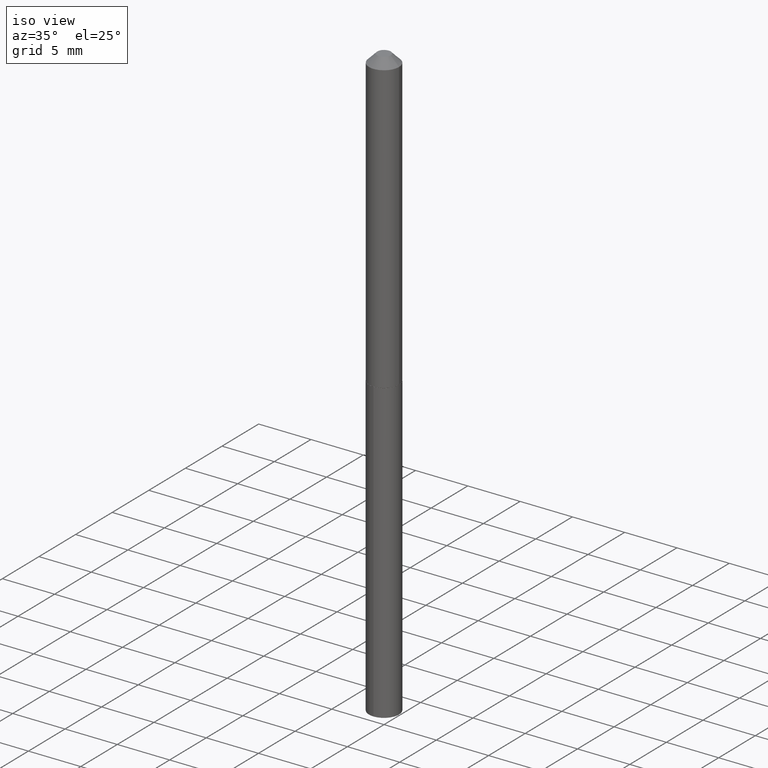
[diagram: clean part render]
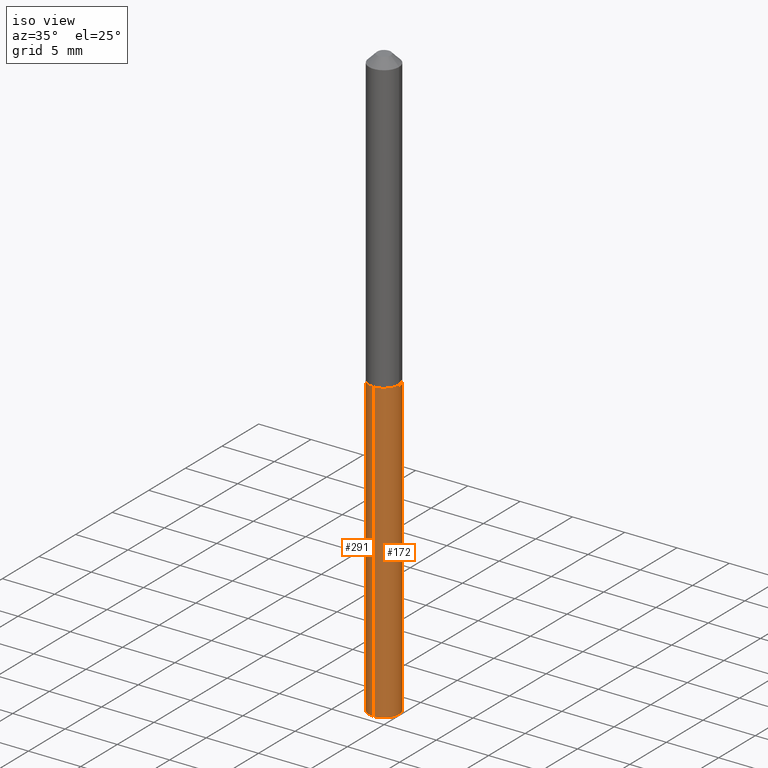
[diagram: same view with one multi-face feature highlighted, each face labeled with its STEP entity id]
A machine part, iso view. The highlighted faces form ONE feature: a constant-radius fillet chain: 2 tangent blend faces with common blend radius 1.4351 mm. The faces share edges in the B-rep.
Their STEP definitions:
[1] entity #172 (Cylinder):
#28 = CYLINDRICAL_SURFACE ( 'NONE', #364, 0.05650000000000000161 ) ;
#30 = FACE_OUTER_BOUND ( 'NONE', #249, .T. ) ;
#41 = EDGE_CURVE ( 'NONE', #94, #45, #75, .T. ) ;
#45 = VERTEX_POINT ( 'NONE', #105 ) ;
#62 = VERTEX_POINT ( 'NONE', #79 ) ;
#68 = VECTOR ( 'NONE', #142, 39.37007874015748143 ) ;
#73 = ORIENTED_EDGE ( 'NONE', *, *, #41, .F. ) ;
#75 = LINE ( 'NONE', #351, #68 ) ;
#79 = CARTESIAN_POINT ( 'NONE',  ( 4.014566457045111465E-16, 0.05649999999999218842, -2.234860870627642271 ) ) ;
#83 = DIRECTION ( 'NONE',  ( -2.445478652372085799E-29, 3.491467238543024018E-15, 1.000000000000000000 ) ) ;
#89 = DIRECTION ( 'NONE',  ( -2.445478652372085799E-29, 3.491467238543024018E-15, 1.000000000000000000 ) ) ;
#94 = VERTEX_POINT ( 'NONE', #104 ) ;
#101 = CIRCLE ( 'NONE', #212, 0.05650000000000000161 ) ;
#104 = CARTESIAN_POINT ( 'NONE',  ( -3.945373912892193281E-16, -0.05650000000000779399, -2.234860870627641827 ) ) ;
#105 = CARTESIAN_POINT ( 'NONE',  ( -3.945373912892467903E-16, -0.05650000000000388045, -1.112999999999999767 ) ) ;
#113 = CARTESIAN_POINT ( 'NONE',  ( 5.465293591335518507E-29, -7.802959206132187600E-15, -2.234860870627641827 ) ) ;
#128 = ORIENTED_EDGE ( 'NONE', *, *, #248, .T. ) ;
#142 = DIRECTION ( 'NONE',  ( -2.445478652372085799E-29, 3.491467238543024018E-15, 1.000000000000000000 ) ) ;
#145 = CARTESIAN_POINT ( 'NONE',  ( 2.721806781284057041E-29, -3.886018730132420772E-15, -1.112999999999999989 ) ) ;
#147 = DIRECTION ( 'NONE',  ( -6.982962677686265922E-15, -1.000000000000000000, 2.417564596163064711E-15 ) ) ;
#155 = VERTEX_POINT ( 'NONE', #177 ) ;
#157 = CIRCLE ( 'NONE', #362, 0.05650000000000000161 ) ;
#172 = ADVANCED_FACE ( 'NONE', ( #30 ), #28, .T. ) ;
#177 = CARTESIAN_POINT ( 'NONE',  ( 4.014566457045113930E-16, 0.05649999999999611583, -1.113000000000000211 ) ) ;
#189 = EDGE_CURVE ( 'NONE', #45, #155, #101, .T. ) ;
#212 = AXIS2_PLACEMENT_3D ( 'NONE', #358, #215, #390 ) ;
#215 = DIRECTION ( 'NONE',  ( -2.445478652372085799E-29, 3.491467238543024018E-15, 1.000000000000000000 ) ) ;
#237 = DIRECTION ( 'NONE',  ( -2.445478652372085799E-29, 3.491467238543024018E-15, 1.000000000000000000 ) ) ;
#248 = EDGE_CURVE ( 'NONE', #94, #62, #157, .T. ) ;
#249 = EDGE_LOOP ( 'NONE', ( #128, #368, #275, #73 ) ) ;
#267 = EDGE_CURVE ( 'NONE', #62, #155, #325, .T. ) ;
#275 = ORIENTED_EDGE ( 'NONE', *, *, #189, .F. ) ;
#293 = VECTOR ( 'NONE', #89, 39.37007874015748143 ) ;
#325 = LINE ( 'NONE', #359, #293 ) ;
#327 = DIRECTION ( 'NONE',  ( -6.982962677686265922E-15, -1.000000000000000000, 4.835129192326129423E-15 ) ) ;
#351 = CARTESIAN_POINT ( 'NONE',  ( -3.945373912892467903E-16, -0.05650000000000388045, -1.112999999999999767 ) ) ;
#358 = CARTESIAN_POINT ( 'NONE',  ( 2.721806781284057041E-29, -3.886018730132420772E-15, -1.112999999999999989 ) ) ;
#359 = CARTESIAN_POINT ( 'NONE',  ( 4.014566457044837829E-16, 0.05649999999999611583, -1.113000000000000211 ) ) ;
#362 = AXIS2_PLACEMENT_3D ( 'NONE', #113, #237, #327 ) ;
#364 = AXIS2_PLACEMENT_3D ( 'NONE', #145, #83, #147 ) ;
#368 = ORIENTED_EDGE ( 'NONE', *, *, #267, .T. ) ;
#390 = DIRECTION ( 'NONE',  ( -6.982962677686265922E-15, -1.000000000000000000, 2.417564596163064711E-15 ) ) ;
[2] entity #291 (Cylinder):
#13 = DIRECTION ( 'NONE',  ( -2.445478652372085799E-29, 3.491467238543024018E-15, 1.000000000000000000 ) ) ;
#16 = ORIENTED_EDGE ( 'NONE', *, *, #93, .T. ) ;
#17 = EDGE_CURVE ( 'NONE', #155, #45, #329, .T. ) ;
#19 = ORIENTED_EDGE ( 'NONE', *, *, #17, .F. ) ;
#40 = DIRECTION ( 'NONE',  ( -2.445478652372085799E-29, 3.491467238543024018E-15, 1.000000000000000000 ) ) ;
#41 = EDGE_CURVE ( 'NONE', #94, #45, #75, .T. ) ;
#45 = VERTEX_POINT ( 'NONE', #105 ) ;
#47 = DIRECTION ( 'NONE',  ( -6.982962677686265922E-15, -1.000000000000000000, 2.417564596163064711E-15 ) ) ;
#62 = VERTEX_POINT ( 'NONE', #79 ) ;
#68 = VECTOR ( 'NONE', #142, 39.37007874015748143 ) ;
#75 = LINE ( 'NONE', #351, #68 ) ;
#76 = AXIS2_PLACEMENT_3D ( 'NONE', #281, #13, #252 ) ;
#79 = CARTESIAN_POINT ( 'NONE',  ( 4.014566457045111465E-16, 0.05649999999999218842, -2.234860870627642271 ) ) ;
#89 = DIRECTION ( 'NONE',  ( -2.445478652372085799E-29, 3.491467238543024018E-15, 1.000000000000000000 ) ) ;
#93 = EDGE_CURVE ( 'NONE', #62, #94, #251, .T. ) ;
#94 = VERTEX_POINT ( 'NONE', #104 ) ;
#104 = CARTESIAN_POINT ( 'NONE',  ( -3.945373912892193281E-16, -0.05650000000000779399, -2.234860870627641827 ) ) ;
#105 = CARTESIAN_POINT ( 'NONE',  ( -3.945373912892467903E-16, -0.05650000000000388045, -1.112999999999999767 ) ) ;
#129 = CYLINDRICAL_SURFACE ( 'NONE', #150, 0.05650000000000000161 ) ;
#142 = DIRECTION ( 'NONE',  ( -2.445478652372085799E-29, 3.491467238543024018E-15, 1.000000000000000000 ) ) ;
#150 = AXIS2_PLACEMENT_3D ( 'NONE', #340, #40, #276 ) ;
#155 = VERTEX_POINT ( 'NONE', #177 ) ;
#163 = DIRECTION ( 'NONE',  ( -2.445478652372085799E-29, 3.491467238543024018E-15, 1.000000000000000000 ) ) ;
#171 = CARTESIAN_POINT ( 'NONE',  ( 2.721806781284057041E-29, -3.886018730132420772E-15, -1.112999999999999989 ) ) ;
#177 = CARTESIAN_POINT ( 'NONE',  ( 4.014566457045113930E-16, 0.05649999999999611583, -1.113000000000000211 ) ) ;
#213 = EDGE_LOOP ( 'NONE', ( #336, #16, #372, #19 ) ) ;
#223 = FACE_OUTER_BOUND ( 'NONE', #213, .T. ) ;
#251 = CIRCLE ( 'NONE', #76, 0.05650000000000000161 ) ;
#252 = DIRECTION ( 'NONE',  ( -6.982962677686265922E-15, -1.000000000000000000, 4.835129192326129423E-15 ) ) ;
#267 = EDGE_CURVE ( 'NONE', #62, #155, #325, .T. ) ;
#276 = DIRECTION ( 'NONE',  ( -6.982962677686265922E-15, -1.000000000000000000, 2.417564596163064711E-15 ) ) ;
#281 = CARTESIAN_POINT ( 'NONE',  ( 5.465293591335518507E-29, -7.802959206132187600E-15, -2.234860870627641827 ) ) ;
#291 = ADVANCED_FACE ( 'NONE', ( #223 ), #129, .T. ) ;
#293 = VECTOR ( 'NONE', #89, 39.37007874015748143 ) ;
#325 = LINE ( 'NONE', #359, #293 ) ;
#329 = CIRCLE ( 'NONE', #346, 0.05650000000000000161 ) ;
#336 = ORIENTED_EDGE ( 'NONE', *, *, #267, .F. ) ;
#340 = CARTESIAN_POINT ( 'NONE',  ( 2.721806781284057041E-29, -3.886018730132420772E-15, -1.112999999999999989 ) ) ;
#346 = AXIS2_PLACEMENT_3D ( 'NONE', #171, #163, #47 ) ;
#351 = CARTESIAN_POINT ( 'NONE',  ( -3.945373912892467903E-16, -0.05650000000000388045, -1.112999999999999767 ) ) ;
#359 = CARTESIAN_POINT ( 'NONE',  ( 4.014566457044837829E-16, 0.05649999999999611583, -1.113000000000000211 ) ) ;
#372 = ORIENTED_EDGE ( 'NONE', *, *, #41, .T. ) ;